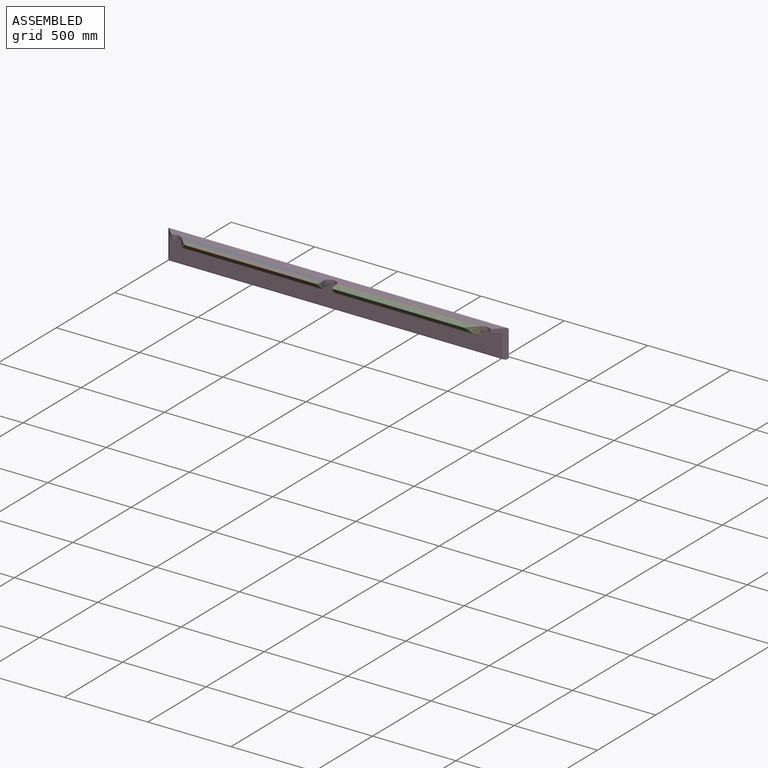
[diagram: assembled view]
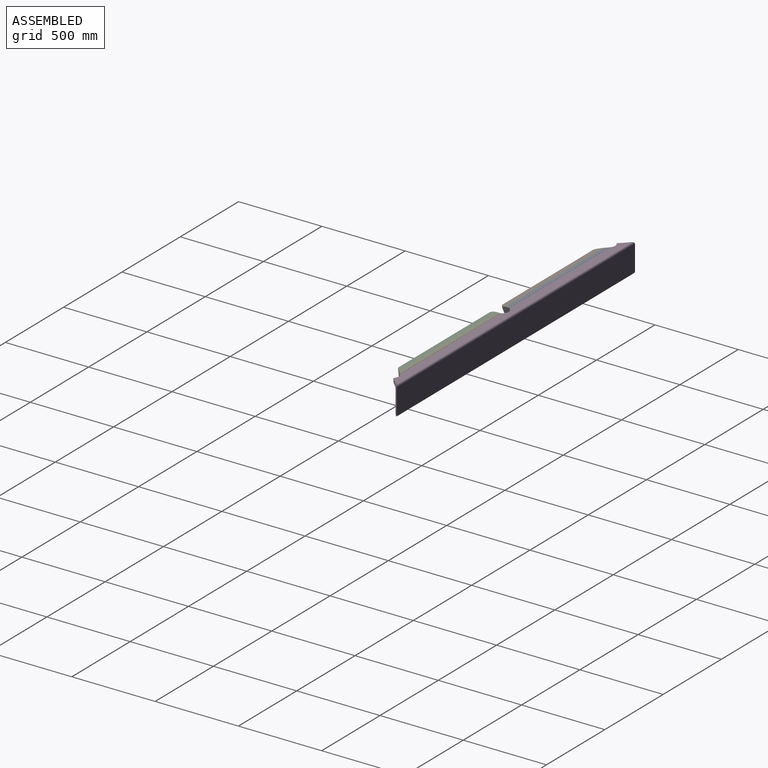
[diagram: assembled view, second angle]
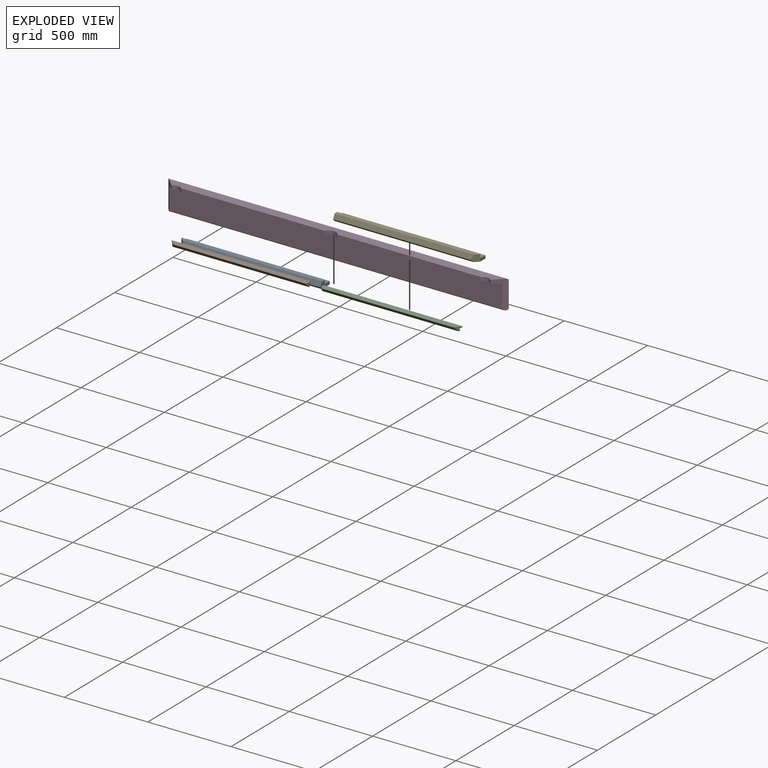
[diagram: exploded view]
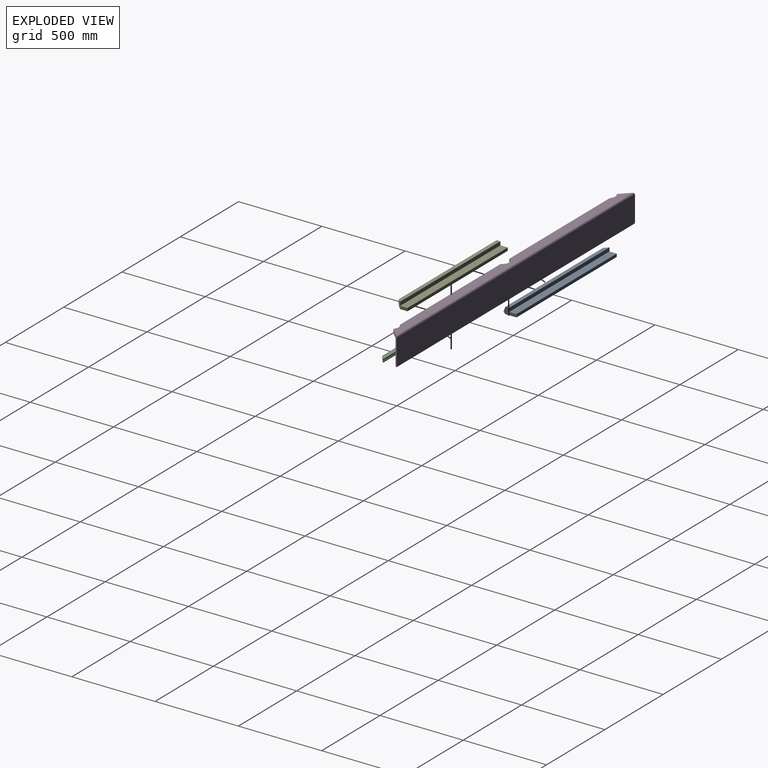
[diagram: exploded view, second angle]
ASSEMBLY  parts=5 mates=4
PART A: 30 faces, bbox 860x78x40 mm
  f0: plane 78x40mm, normal (1,0,0), area 1933.4mm2, adj f2,f3,f4,f5,f7,f8,f9
  f1: plane 40x34mm, normal (-0.71,-0.71,0), area 1614.2mm2, adj f2,f3,f4,f6,f8,f9
  f2: plane 860x67.78mm, normal (0,0,-1), area 57437.3mm2, adj f0,f1,f6,f7,f9,f11,f13,f15
  f3: plane 860x22.76mm, normal (0,0,1), area 19316.1mm2, adj f0,f1,f4,f8
  f4: plane 860x22mm, normal (0,1,0), area 18920mm2, adj f0,f1,f3,f5
  f5: plane 860x44mm, normal (0,0,1), area 37791.7mm2, adj f0,f4,f6,f7,f10,f12,f14,f16
  f6: plane 44x18mm, normal (-1,0,0), area 792mm2, adj f1,f2,f5,f7
  f7: plane 860x18mm, normal (0,1,0), area 15480mm2, adj f0,f2,f5,f6
  f8: plane 837.24x27.82mm, normal (0,-0.93,0.37), area 24948.6mm2, adj f0,f1,f3,f9
  f9: plane 836.22x12.18mm, normal (0,-0.77,-0.64), area 13219.4mm2, adj f0,f1,f2,f8
  f10: cone r=0mm half-angle=59deg, axis (0,0,-1), area 54.9mm2, adj f5,f11
  f11: cylinder r=4.25mm len=16.5mm, axis (0,0,-1), area 440.6mm2, adj f2,f10
  f12: cone r=0mm half-angle=59deg, axis (0,0,-1), area 54.9mm2, adj f5,f13
  f13: cylinder r=4.25mm len=16.5mm, axis (0,0,-1), area 440.6mm2, adj f2,f12
  f14: cone r=0mm half-angle=59deg, axis (0,0,-1), area 54.9mm2, adj f5,f15
  f15: cylinder r=4.25mm len=16.5mm, axis (0,0,-1), area 440.6mm2, adj f2,f14
  f16: cone r=0mm half-angle=59deg, axis (0,0,-1), area 54.9mm2, adj f5,f17
  f17: cylinder r=4.25mm len=16.5mm, axis (0,0,-1), area 440.6mm2, adj f2,f16
  f18: cone r=0mm half-angle=59deg, axis (0,0,-1), area 54.9mm2, adj f5,f19
  f19: cylinder r=4.25mm len=16.5mm, axis (0,0,-1), area 440.6mm2, adj f2,f18
  f20: cone r=0mm half-angle=59deg, axis (0,0,-1), area 66.2mm2, adj f21
  f21: cylinder r=4.25mm len=16.5mm, axis (0,0,-1), area 440.6mm2, adj f2,f20
  f22: cone r=0mm half-angle=59deg, axis (0,0,-1), area 66.2mm2, adj f23
  f23: cylinder r=4.25mm len=16.5mm, axis (0,0,-1), area 440.6mm2, adj f2,f22
  f24: cone r=0mm half-angle=59deg, axis (0,0,-1), area 66.2mm2, adj f25
  f25: cylinder r=4.25mm len=16.5mm, axis (0,0,-1), area 440.6mm2, adj f2,f24
  f26: cone r=0mm half-angle=59deg, axis (0,0,-1), area 66.2mm2, adj f27
  f27: cylinder r=4.25mm len=16.5mm, axis (0,0,-1), area 440.6mm2, adj f2,f26
  f28: cone r=0mm half-angle=59deg, axis (0,0,-1), area 66.2mm2, adj f29
  f29: cylinder r=4.25mm len=16.5mm, axis (0,0,-1), area 440.6mm2, adj f2,f28
PART B: 11 faces, bbox 835.9x31.8x38.1 mm
  f0: plane 835.85x10mm, normal (0,1,0), area 8335.2mm2, adj f1,f5,f7,f9
  f1: plane 12.2x8.27mm, normal (1,0,0), area 60.3mm2, adj f0,f2,f5,f9
  f2: cylinder r=22.86mm len=33.72mm, axis (0,-0.47,0.88), area 378mm2, adj f1,f3,f4,f5,f6,f9,f10
  f3: plane 821.4x26.82mm, normal (0,-0.47,-0.88), area 24436.2mm2, adj f2,f4,f7,f8,f10
  f4: plane 826.58x10.05mm, normal (0,1,0), area 8240.5mm2, adj f2,f3,f6,f7,f9
  f5: plane 835.85x26.82mm, normal (0,-0.47,0.88), area 24770.7mm2, adj f0,f1,f2,f7,f8,f10
  f6: plane 0.07x0.04mm, normal (1,0,0), area 0mm2, adj f2,f4,f9
  f7: plane 30x19.38mm, normal (-0.71,-0.63,-0.33), area 379.6mm2, adj f0,f3,f4,f5,f8,f9
  f8: cylinder r=43.8mm len=22.14mm, axis (0,-0.47,0.88), area 213.8mm2, adj f3,f5,f7,f10
  f9: cylinder r=5mm len=831.19mm, axis (1,0,0), area 12974.6mm2, adj f0,f1,f2,f4,f6,f7
  f10: cylinder r=1mm len=784.53mm, axis (-1,0,0), area 1694.3mm2, adj f2,f3,f5,f8
PART C: 11 faces, bbox 836.7x31.8x38.1 mm
  f0: plane 836.66x10mm, normal (0,1,0), area 8343.3mm2, adj f1,f5,f6,f9
  f1: plane 12.2x8.27mm, normal (-1,0,0), area 60.3mm2, adj f0,f2,f5,f9
  f2: cylinder r=22.86mm len=33.72mm, axis (0,-0.47,0.88), area 378mm2, adj f1,f3,f4,f5,f8,f9,f10
  f3: plane 822.21x26.82mm, normal (0,-0.47,-0.88), area 24460.8mm2, adj f2,f4,f6,f7,f10
  f4: plane 827.39x10.05mm, normal (0,1,0), area 8248.6mm2, adj f2,f3,f6,f8,f9
  f5: plane 836.66x26.82mm, normal (0,-0.47,0.88), area 24795.3mm2, adj f0,f1,f2,f6,f7,f10
  f6: plane 30x19.38mm, normal (0.71,-0.63,-0.33), area 379.6mm2, adj f0,f3,f4,f5,f7,f9
  f7: cylinder r=43.8mm len=22.14mm, axis (0,-0.47,0.88), area 213.8mm2, adj f3,f5,f6,f10
  f8: plane 0.07x0.04mm, normal (-1,0,0), area 0mm2, adj f2,f4,f9
  f9: cylinder r=5mm len=832mm, axis (1,0,0), area 12987.4mm2, adj f0,f1,f2,f4,f6,f8
  f10: cylinder r=1mm len=785.34mm, axis (-1,0,0), area 1696.1mm2, adj f2,f3,f5,f7
PART D: 35 faces, bbox 2044x65x172 mm
  f0: plane 862.39x22mm, normal (0,-1,0), area 18972.5mm2, adj f1,f6,f33,f34
  f1: plane 2000x43mm, normal (0,0,-1), area 81322.6mm2, adj f0,f2,f4,f5,f7,f10,f12,f14
  f2: plane 862.39x22mm, normal (0,-1,0), area 18972.5mm2, adj f1,f6,f32,f33
  f3: plane 2044x152mm, normal (0,1,0), area 310688mm2, adj f4,f5,f30,f31
  f4: plane 172x64.76mm, normal (-0.71,-0.71,0), area 6590.8mm2, adj f1,f3,f6,f7,f8,f29,f30,f31
  f5: plane 172x64.76mm, normal (0.71,-0.71,0), area 6590.8mm2, adj f1,f3,f6,f7,f8,f29,f30,f31
  f6: plane 2024x55mm, normal (0,0,1), area 106034mm2, adj f0,f2,f4,f5,f31,f32,f33,f34
  f7: plane 2000x140mm, normal (0,-1,0), area 280000mm2, adj f1,f4,f5,f29
  f8: plane 2024x2mm, normal (0,0,-1), area 4044mm2, adj f4,f5,f29,f30
  f9: cone r=0mm half-angle=59deg, axis (0,0,-1), area 66.2mm2, adj f10
  f10: cylinder r=4.25mm len=16.5mm, axis (0,0,-1), area 440.6mm2, adj f1,f9
  f11: cone r=0mm half-angle=59deg, axis (0,0,-1), area 66.2mm2, adj f12
  f12: cylinder r=4.25mm len=16.5mm, axis (0,0,-1), area 440.6mm2, adj f1,f11
  f13: cone r=0mm half-angle=59deg, axis (0,0,-1), area 66.2mm2, adj f14
  f14: cylinder r=4.25mm len=16.5mm, axis (0,0,-1), area 440.6mm2, adj f1,f13
  f15: cone r=0mm half-angle=59deg, axis (0,0,-1), area 66.2mm2, adj f16
  f16: cylinder r=4.25mm len=16.5mm, axis (0,0,-1), area 440.6mm2, adj f1,f15
  f17: cone r=0mm half-angle=59deg, axis (0,0,-1), area 66.2mm2, adj f18
  f18: cylinder r=4.25mm len=16.5mm, axis (0,0,-1), area 440.6mm2, adj f1,f17
  f19: cone r=0mm half-angle=59deg, axis (0,0,-1), area 66.2mm2, adj f20
  f20: cylinder r=4.25mm len=16.5mm, axis (0,0,-1), area 440.6mm2, adj f1,f19
  f21: cone r=0mm half-angle=59deg, axis (0,0,-1), area 66.2mm2, adj f22
  f22: cylinder r=4.25mm len=16.5mm, axis (0,0,-1), area 440.6mm2, adj f1,f21
  f23: cone r=0mm half-angle=59deg, axis (0,0,-1), area 66.2mm2, adj f24
  f24: cylinder r=4.25mm len=16.5mm, axis (0,0,-1), area 440.6mm2, adj f1,f23
  f25: cone r=0mm half-angle=59deg, axis (0,0,-1), area 66.2mm2, adj f26
  f26: cylinder r=4.25mm len=16.5mm, axis (0,0,-1), area 440.6mm2, adj f1,f25
  f27: cone r=0mm half-angle=59deg, axis (0,0,-1), area 66.2mm2, adj f28
  f28: cylinder r=4.25mm len=16.5mm, axis (0,0,-1), area 440.6mm2, adj f1,f27
  f29: cylinder r=10mm len=2020mm, axis (1,0,0), area 31530.1mm2, adj f4,f5,f7,f8
  f30: cylinder r=10mm len=2044mm, axis (1,0,0), area 31992.9mm2, adj f3,f4,f5,f8
  f31: cylinder r=10mm len=2044mm, axis (1,0,0), area 31992.9mm2, adj f3,f4,f5,f6
  f32: cylinder r=40.64mm len=57.71mm, axis (0,0,1), area 1411.8mm2, adj f1,f2,f5,f6
  f33: cylinder r=40.64mm len=74.28mm, axis (0,0,1), area 2061.2mm2, adj f0,f1,f2,f6
  f34: cylinder r=40.64mm len=57.71mm, axis (0,0,1), area 1411.8mm2, adj f0,f1,f4,f6
PART E: 30 faces, bbox 860x78x40 mm
  f0: plane 78x40mm, normal (-1,0,0), area 1933.4mm2, adj f2,f3,f4,f5,f7,f8,f9
  f1: plane 40x34mm, normal (0.71,-0.71,0), area 1614.2mm2, adj f2,f3,f4,f6,f8,f9
  f2: plane 860x67.78mm, normal (0,0,-1), area 57437.3mm2, adj f0,f1,f6,f7,f9,f11,f13,f15
  f3: plane 860x22.76mm, normal (0,0,1), area 19316.1mm2, adj f0,f1,f4,f8
  f4: plane 860x22mm, normal (0,1,0), area 18920mm2, adj f0,f1,f3,f5
  f5: plane 860x44mm, normal (0,0,1), area 37791.7mm2, adj f0,f4,f6,f7,f10,f12,f14,f16
  f6: plane 44x18mm, normal (1,0,0), area 792mm2, adj f1,f2,f5,f7
  f7: plane 860x18mm, normal (0,1,0), area 15480mm2, adj f0,f2,f5,f6
  f8: plane 837.24x27.82mm, normal (0,-0.93,0.37), area 24948.6mm2, adj f0,f1,f3,f9
  f9: plane 836.22x12.18mm, normal (0,-0.77,-0.64), area 13219.4mm2, adj f0,f1,f2,f8
  f10: cone r=0mm half-angle=59deg, axis (0,0,-1), area 54.9mm2, adj f5,f11
  f11: cylinder r=4.25mm len=16.5mm, axis (0,0,-1), area 440.6mm2, adj f2,f10
  f12: cone r=0mm half-angle=59deg, axis (0,0,-1), area 54.9mm2, adj f5,f13
  f13: cylinder r=4.25mm len=16.5mm, axis (0,0,-1), area 440.6mm2, adj f2,f12
  f14: cone r=0mm half-angle=59deg, axis (0,0,-1), area 54.9mm2, adj f5,f15
  f15: cylinder r=4.25mm len=16.5mm, axis (0,0,-1), area 440.6mm2, adj f2,f14
  f16: cone r=0mm half-angle=59deg, axis (0,0,-1), area 54.9mm2, adj f5,f17
  f17: cylinder r=4.25mm len=16.5mm, axis (0,0,-1), area 440.6mm2, adj f2,f16
  f18: cone r=0mm half-angle=59deg, axis (0,0,-1), area 54.9mm2, adj f5,f19
  f19: cylinder r=4.25mm len=16.5mm, axis (0,0,-1), area 440.6mm2, adj f2,f18
  f20: cone r=0mm half-angle=59deg, axis (0,0,-1), area 66.2mm2, adj f21
  f21: cylinder r=4.25mm len=16.5mm, axis (0,0,-1), area 440.6mm2, adj f2,f20
  f22: cone r=0mm half-angle=59deg, axis (0,0,-1), area 66.2mm2, adj f23
  f23: cylinder r=4.25mm len=16.5mm, axis (0,0,-1), area 440.6mm2, adj f2,f22
  f24: cone r=0mm half-angle=59deg, axis (0,0,-1), area 66.2mm2, adj f25
  f25: cylinder r=4.25mm len=16.5mm, axis (0,0,-1), area 440.6mm2, adj f2,f24
  f26: cone r=0mm half-angle=59deg, axis (0,0,-1), area 66.2mm2, adj f27
  f27: cylinder r=4.25mm len=16.5mm, axis (0,0,-1), area 440.6mm2, adj f2,f26
  f28: cone r=0mm half-angle=59deg, axis (0,0,-1), area 66.2mm2, adj f29
  f29: cylinder r=4.25mm len=16.5mm, axis (0,0,-1), area 440.6mm2, adj f2,f28
PLACE A t=(-467.5,-34.75,-18)mm
PLACE B rot(axis=(-1,0,0),22deg) t=(-449.19,-34.75,-5.82)mm
PLACE C rot(axis=(-1,0,0),22deg) t=(424.45,-34.75,-5.82)mm
PLACE D at identity fixed
PLACE E t=(467.5,-34.75,-18)mm
MATE fastened C.f0 <-> E.f8  axis (0,0.93,-0.37) through (456.12,-23.51,22)mm
MATE fastened D.f15 <-> A.f12  axis (0,0,-1) through (-827.5,21.25,0)mm
MATE fastened B.f0 <-> A.f8  axis (0,0.93,-0.37) through (-456.12,-23.51,22)mm
MATE fastened E.f10 <-> D.f27  axis (0,0,1) through (827.5,21.25,0)mm
